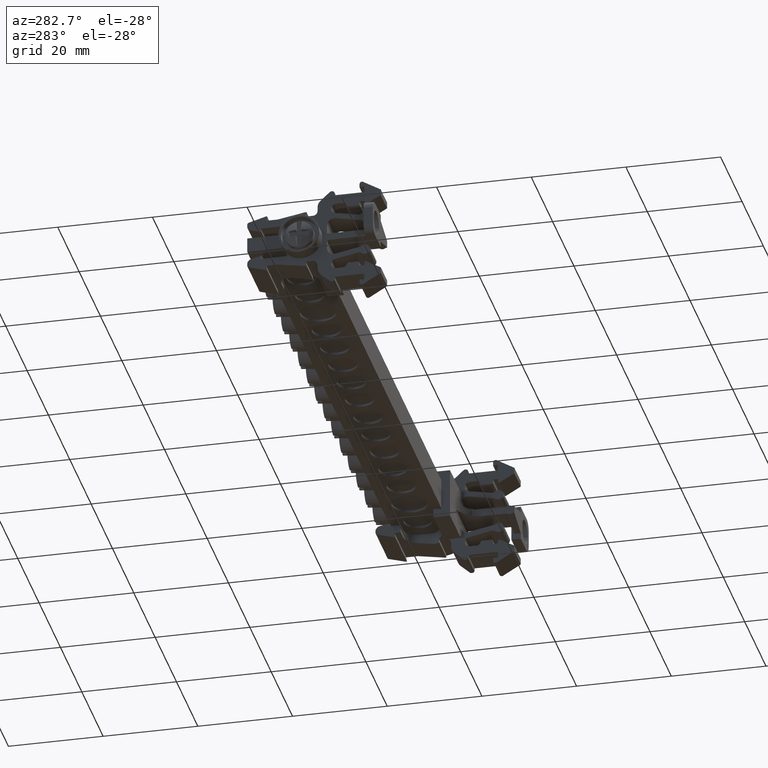
[diagram: clean part render]
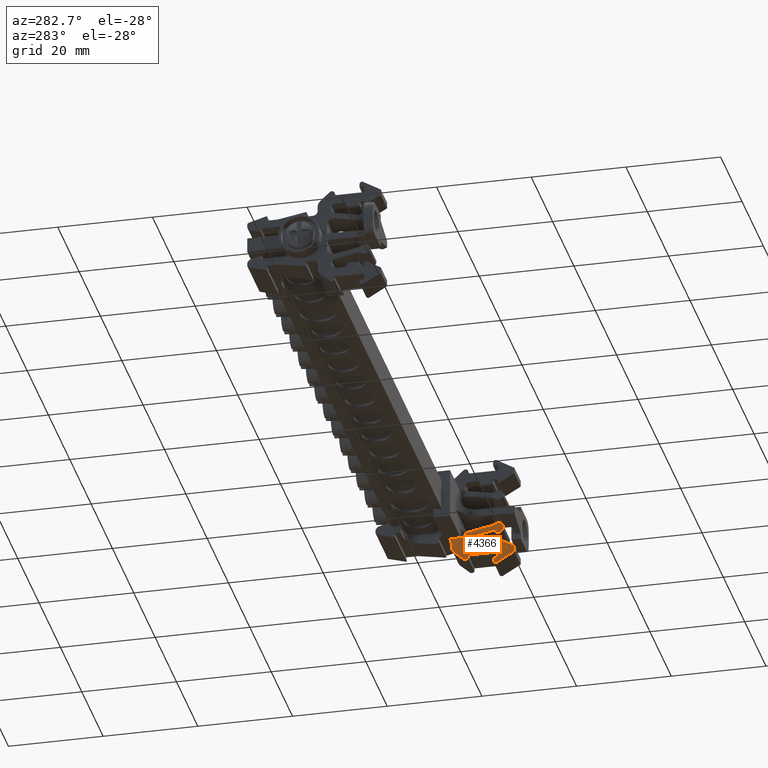
[diagram: same view with one face highlighted and labeled with its STEP entity id]
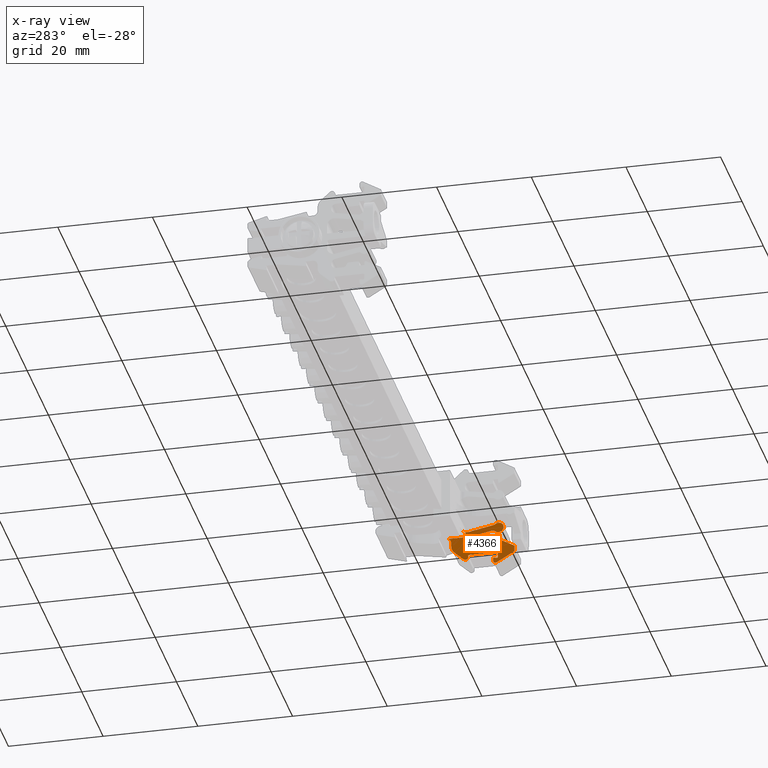
[diagram: x-ray of the same camera — body ghosted, the highlighted face saturated]
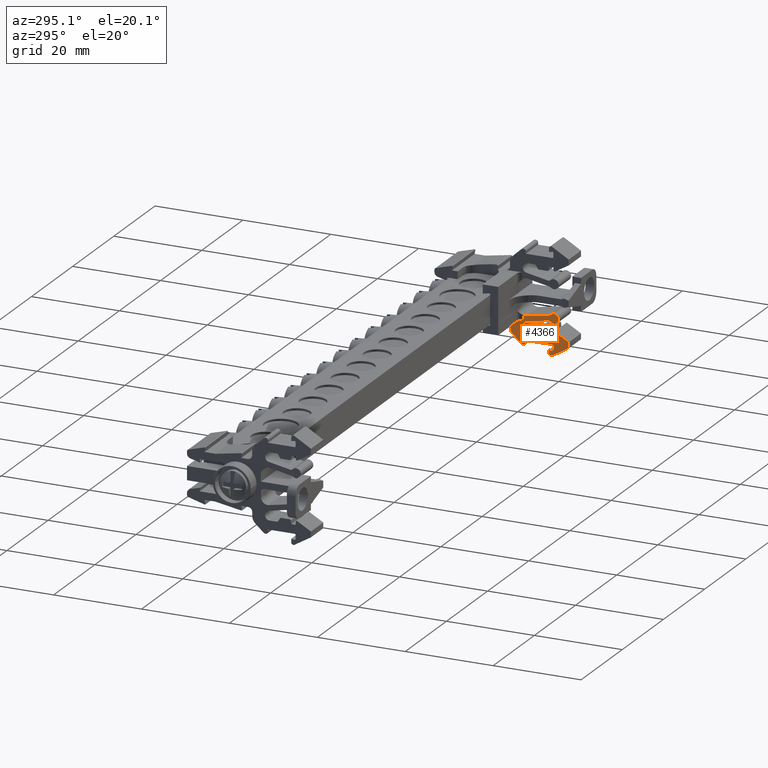
[diagram: same view with one face highlighted and labeled with its STEP entity id]
A machine part, auxiliary view. The second image highlights one B-rep face of the part: STEP entity #4366.
The next image is the same camera in x-ray: the body ghosted, the highlighted face saturated — about 0% of this face is hidden behind the body in this view.
A second angle (auxiliary view) of the same face is appended — the face is thin or edge-on in the first view.
In plain terms, the highlighted planar face has unit normal (-1, 0, -0).
Its self-contained STEP definition (entity closure, byte-faithful):
#8 = EDGE_CURVE ( 'NONE', #11749, #8898, #16404, .T. ) ;
#60 = EDGE_CURVE ( 'NONE', #8937, #8899, #9125, .T. ) ;
#65 = EDGE_CURVE ( 'NONE', #8894, #8901, #9199, .T. ) ;
#66 = EDGE_CURVE ( 'NONE', #8936, #8969, #9195, .T. ) ;
#71 = EDGE_CURVE ( 'NONE', #8930, #8888, #9177, .T. ) ;
#73 = EDGE_CURVE ( 'NONE', #21572, #8934, #3832, .T. ) ;
#95 = EDGE_CURVE ( 'NONE', #8825, #8902, #9289, .T. ) ;
#113 = EDGE_CURVE ( 'NONE', #8911, #8882, #9310, .T. ) ;
#118 = EDGE_CURVE ( 'NONE', #8846, #8916, #9339, .T. ) ;
#145 = EDGE_CURVE ( 'NONE', #11749, #11752, #3887, .T. ) ;
#787 = AXIS2_PLACEMENT_3D ( 'NONE', #14609, #14583, #14579 ) ;
#803 = CIRCLE ( 'NONE', #787, 1.100000000040436600 ) ;
#978 = VECTOR ( 'NONE', #14646, 1000.000000000000100 ) ;
#1018 = VECTOR ( 'NONE', #11679, 1000.000000000000000 ) ;
#1038 = VECTOR ( 'NONE', #8323, 1000.000000000000000 ) ;
#1043 = VECTOR ( 'NONE', #11122, 1000.000000000000200 ) ;
#1045 = VECTOR ( 'NONE', #11092, 1000.000000000000000 ) ;
#1177 = VECTOR ( 'NONE', #24895, 1000.000000000000100 ) ;
#1247 = AXIS2_PLACEMENT_3D ( 'NONE', #17638, #17669, #17639 ) ;
#1787 = DIRECTION ( 'NONE',  ( 1.000000000000000000, 1.101172293446148100E-014, 2.403906012228000300E-015 ) ) ;
#1799 = LINE ( 'NONE', #1814, #25475 ) ;
#1800 = DIRECTION ( 'NONE',  ( 0.0000000000000000000, 0.0000000000000000000, 1.000000000000000000 ) ) ;
#1806 = CARTESIAN_POINT ( 'NONE',  ( -32.33039649368615200, -51.85167342166836600, 89.21944197968717600 ) ) ;
#1814 = CARTESIAN_POINT ( 'NONE',  ( -32.33039649368605200, -58.64466689906337400, 68.30975947004758100 ) ) ;
#1823 = DIRECTION ( 'NONE',  ( 0.0000000000000000000, -1.000000000000000000, 4.625929039514235100E-014 ) ) ;
#2379 = LINE ( 'NONE', #2393, #16938 ) ;
#2382 = DIRECTION ( 'NONE',  ( -0.0000000000000000000, -1.000000000000000000, -1.383348239789810300E-013 ) ) ;
#2393 = CARTESIAN_POINT ( 'NONE',  ( -32.33039649368585300, -48.32358989761902300, 90.63749771212378900 ) ) ;
#2408 = CARTESIAN_POINT ( 'NONE',  ( -32.33039649368620200, -49.67006088807230000, 90.73144221563995900 ) ) ;
#2416 = DIRECTION ( 'NONE',  ( 2.352285033423025200E-015, 1.387778780781406000E-013, -1.000000000000000000 ) ) ;
#2425 = LINE ( 'NONE', #2408, #16928 ) ;
#3455 = EDGE_CURVE ( 'NONE', #8668, #8671, #4065, .T. ) ;
#3483 = EDGE_CURVE ( 'NONE', #8637, #8664, #4013, .T. ) ;
#3515 = EDGE_CURVE ( 'NONE', #8666, #8604, #4127, .T. ) ;
#3534 = EDGE_CURVE ( 'NONE', #8652, #8706, #4848, .T. ) ;
#3556 = EDGE_CURVE ( 'NONE', #8720, #8704, #4107, .T. ) ;
#3596 = EDGE_CURVE ( 'NONE', #8704, #8676, #4973, .T. ) ;
#3693 = EDGE_CURVE ( 'NONE', #8855, #8664, #5123, .T. ) ;
#3706 = EDGE_CURVE ( 'NONE', #8859, #8750, #4025, .T. ) ;
#3708 = EDGE_CURVE ( 'NONE', #8869, #8720, #5172, .T. ) ;
#3711 = EDGE_CURVE ( 'NONE', #8671, #8828, #5179, .T. ) ;
#3735 = VECTOR ( 'NONE', #5139, 1000.000000000000100 ) ;
#3744 = VECTOR ( 'NONE', #5186, 1000.000000000000000 ) ;
#3783 = VECTOR ( 'NONE', #9160, 1000.000000000000100 ) ;
#3829 = VECTOR ( 'NONE', #9193, 1000.000000000000000 ) ;
#3830 = VECTOR ( 'NONE', #9175, 1000.000000000000000 ) ;
#3832 = CIRCLE ( 'NONE', #3836, 1.100000000040436600 ) ;
#3833 = VECTOR ( 'NONE', #9194, 1000.000000000000200 ) ;
#3836 = AXIS2_PLACEMENT_3D ( 'NONE', #9207, #9209, #9188 ) ;
#3857 = VECTOR ( 'NONE', #9290, 1000.000000000000000 ) ;
#3877 = VECTOR ( 'NONE', #9383, 1000.000000000000100 ) ;
#3887 = CIRCLE ( 'NONE', #3888, 1.511999999999999600 ) ;
#3888 = AXIS2_PLACEMENT_3D ( 'NONE', #9381, #5264, #5254 ) ;
#3909 = VECTOR ( 'NONE', #9317, 1000.000000000000000 ) ;
#4013 = CIRCLE ( 'NONE', #4022, 1.000000000036318900 ) ;
#4022 = AXIS2_PLACEMENT_3D ( 'NONE', #4818, #4831, #4803 ) ;
#4025 = CIRCLE ( 'NONE', #4055, 0.5000000000187145900 ) ;
#4055 = AXIS2_PLACEMENT_3D ( 'NONE', #5183, #5148, #5181 ) ;
#4065 = CIRCLE ( 'NONE', #4071, 1.000000000036881200 ) ;
#4071 = AXIS2_PLACEMENT_3D ( 'NONE', #4787, #4762, #4791 ) ;
#4078 = VECTOR ( 'NONE', #4995, 1000.000000000000100 ) ;
#4082 = VECTOR ( 'NONE', #4883, 1000.000000000000000 ) ;
#4100 = AXIS2_PLACEMENT_3D ( 'NONE', #4953, #4925, #4927 ) ;
#4104 = AXIS2_PLACEMENT_3D ( 'NONE', #4841, #4857, #4842 ) ;
#4107 = CIRCLE ( 'NONE', #4100, 0.2000000000076732100 ) ;
#4127 = CIRCLE ( 'NONE', #4104, 0.5000000000182358600 ) ;
#4164 = VECTOR ( 'NONE', #5152, 1000.000000000000000 ) ;
#4300 = EDGE_CURVE ( 'NONE', #8637, #8604, #24898, .T. ) ;
#4366 = ADVANCED_FACE ( 'NONE', ( #17665 ), #17667, .T. ) ;
#4762 = DIRECTION ( 'NONE',  ( 1.000000000000000000, 1.101172293446148100E-014, 2.403906012228000300E-015 ) ) ;
#4787 = CARTESIAN_POINT ( 'NONE',  ( -32.33039649368620900, -44.29758946941841900, 89.76944206850869500 ) ) ;
#4791 = DIRECTION ( 'NONE',  ( 1.387778780730262800E-014, -1.000000000000000000, 0.0000000000000000000 ) ) ;
#4803 = DIRECTION ( 'NONE',  ( 1.387778780731043000E-014, -1.000000000000000000, 0.0000000000000000000 ) ) ;
#4818 = CARTESIAN_POINT ( 'NONE',  ( -32.33039649368615200, -49.21707803139546700, 89.51944179387656700 ) ) ;
#4831 = DIRECTION ( 'NONE',  ( 1.000000000000000000, 1.101172293446148100E-014, 2.403906012228000300E-015 ) ) ;
#4841 = CARTESIAN_POINT ( 'NONE',  ( -32.33039649368615900, -50.81244311099787600, 89.01944198712675400 ) ) ;
#4842 = DIRECTION ( 'NONE',  ( 1.387778780730830900E-014, -1.000000000000000000, 2.775557561461661900E-014 ) ) ;
#4848 = LINE ( 'NONE', #4908, #4082 ) ;
#4857 = DIRECTION ( 'NONE',  ( 1.000000000000000000, 1.101172293446148100E-014, 2.403906012228000300E-015 ) ) ;
#4883 = DIRECTION ( 'NONE',  ( -4.009822214888755600E-044, 1.000000000000000000, 1.668044505272630100E-029 ) ) ;
#4908 = CARTESIAN_POINT ( 'NONE',  ( -32.33039649368610200, -45.59583688173570000, 88.51944177150618000 ) ) ;
#4925 = DIRECTION ( 'NONE',  ( 1.000000000000000000, 1.101172293446148100E-014, 2.403906012228000300E-015 ) ) ;
#4927 = DIRECTION ( 'NONE',  ( 0.0000000000000000000, -1.000000000000000000, 0.0000000000000000000 ) ) ;
#4953 = CARTESIAN_POINT ( 'NONE',  ( -32.33039649368610200, -54.96053997683157600, 85.36238036855645800 ) ) ;
#4965 = CARTESIAN_POINT ( 'NONE',  ( -32.33039649368610200, -48.75965838226601800, 86.25267806405557300 ) ) ;
#4973 = LINE ( 'NONE', #4965, #4078 ) ;
#4995 = DIRECTION ( 'NONE',  ( 0.0000000000000000000, 0.9848077451303113300, 0.1736482223673815100 ) ) ;
#5102 = CARTESIAN_POINT ( 'NONE',  ( -32.33039649368620900, -48.21710104535817700, 68.30976215696898600 ) ) ;
#5123 = LINE ( 'NONE', #5102, #3735 ) ;
#5139 = DIRECTION ( 'NONE',  ( 0.0000000000000000000, -1.085070571871616700E-006, -0.9999999999994112500 ) ) ;
#5148 = DIRECTION ( 'NONE',  ( 1.000000000000000000, 1.101172293446148100E-014, 2.403906012228000300E-015 ) ) ;
#5152 = DIRECTION ( 'NONE',  ( 0.0000000000000000000, -0.0000000000000000000, -1.000000000000000000 ) ) ;
#5168 = CARTESIAN_POINT ( 'NONE',  ( -32.33039649368610200, -55.16053997683917500, 68.30975947004758100 ) ) ;
#5172 = LINE ( 'NONE', #5168, #4164 ) ;
#5179 = LINE ( 'NONE', #5180, #3744 ) ;
#5180 = CARTESIAN_POINT ( 'NONE',  ( -32.33039649368620900, -45.29760005549117400, 68.30975925139938500 ) ) ;
#5181 = DIRECTION ( 'NONE',  ( 1.387778780729502300E-014, -1.000000000000000000, 0.0000000000000000000 ) ) ;
#5183 = CARTESIAN_POINT ( 'NONE',  ( -32.33039649368615900, -48.39155226866337500, 86.00344225067357200 ) ) ;
#5186 = DIRECTION ( 'NONE',  ( 0.0000000000000000000, -4.932988041073461900E-007, -0.9999999999998783200 ) ) ;
#5254 = DIRECTION ( 'NONE',  ( -9.178431089824379200E-015, 1.000000000000000000, 0.0000000000000000000 ) ) ;
#5264 = DIRECTION ( 'NONE',  ( -1.000000000000000000, -1.100161628464490100E-014, -2.352285033424550400E-015 ) ) ;
#7973 = CARTESIAN_POINT ( 'NONE',  ( -32.33039649368602400, -48.32358989761902300, 90.73144221564037100 ) ) ;
#8305 = CARTESIAN_POINT ( 'NONE',  ( -32.33039649368615200, -45.74087650197830600, 85.50344835873269700 ) ) ;
#8315 = LINE ( 'NONE', #8305, #1038 ) ;
#8323 = DIRECTION ( 'NONE',  ( 0.0000000000000000000, 0.9999999999973450100, 2.304348000120185200E-006 ) ) ;
#8604 = VERTEX_POINT ( 'NONE', #23156 ) ;
#8637 = VERTEX_POINT ( 'NONE', #23183 ) ;
#8652 = VERTEX_POINT ( 'NONE', #23181 ) ;
#8664 = VERTEX_POINT ( 'NONE', #23194 ) ;
#8666 = VERTEX_POINT ( 'NONE', #23228 ) ;
#8668 = VERTEX_POINT ( 'NONE', #23198 ) ;
#8671 = VERTEX_POINT ( 'NONE', #23201 ) ;
#8676 = VERTEX_POINT ( 'NONE', #23254 ) ;
#8704 = VERTEX_POINT ( 'NONE', #23248 ) ;
#8706 = VERTEX_POINT ( 'NONE', #23276 ) ;
#8720 = VERTEX_POINT ( 'NONE', #23303 ) ;
#8750 = VERTEX_POINT ( 'NONE', #23335 ) ;
#8760 = VERTEX_POINT ( 'NONE', #23315 ) ;
#8761 = VERTEX_POINT ( 'NONE', #23347 ) ;
#8765 = VERTEX_POINT ( 'NONE', #23329 ) ;
#8803 = VERTEX_POINT ( 'NONE', #23388 ) ;
#8825 = VERTEX_POINT ( 'NONE', #23408 ) ;
#8828 = VERTEX_POINT ( 'NONE', #23434 ) ;
#8840 = VERTEX_POINT ( 'NONE', #23409 ) ;
#8846 = VERTEX_POINT ( 'NONE', #23428 ) ;
#8855 = VERTEX_POINT ( 'NONE', #23423 ) ;
#8859 = VERTEX_POINT ( 'NONE', #23420 ) ;
#8869 = VERTEX_POINT ( 'NONE', #13447 ) ;
#8882 = VERTEX_POINT ( 'NONE', #13446 ) ;
#8888 = VERTEX_POINT ( 'NONE', #13202 ) ;
#8894 = VERTEX_POINT ( 'NONE', #13215 ) ;
#8898 = VERTEX_POINT ( 'NONE', #13240 ) ;
#8899 = VERTEX_POINT ( 'NONE', #13191 ) ;
#8901 = VERTEX_POINT ( 'NONE', #13211 ) ;
#8902 = VERTEX_POINT ( 'NONE', #13207 ) ;
#8911 = VERTEX_POINT ( 'NONE', #13194 ) ;
#8916 = VERTEX_POINT ( 'NONE', #13216 ) ;
#8930 = VERTEX_POINT ( 'NONE', #13236 ) ;
#8934 = VERTEX_POINT ( 'NONE', #13199 ) ;
#8936 = VERTEX_POINT ( 'NONE', #13200 ) ;
#8937 = VERTEX_POINT ( 'NONE', #13244 ) ;
#8944 = CARTESIAN_POINT ( 'NONE',  ( -32.33039649368513600, -48.21228471264866800, 91.97966881963947100 ) ) ;
#8945 = CARTESIAN_POINT ( 'NONE',  ( -32.33039649368619500, -48.29758989826876800, 91.94950888202967600 ) ) ;
#8955 = CARTESIAN_POINT ( 'NONE',  ( -32.33039649368513600, -47.77428544944322700, 92.26315205274072200 ) ) ;
#8958 = CARTESIAN_POINT ( 'NONE',  ( -32.33039649368513600, -47.71070303796535900, 92.32638582886036700 ) ) ;
#8959 = CARTESIAN_POINT ( 'NONE',  ( -32.33039649368513600, -48.13205051154687200, 92.01662373321116200 ) ) ;
#8969 = VERTEX_POINT ( 'NONE', #13246 ) ;
#8977 = CARTESIAN_POINT ( 'NONE',  ( -32.33039649368600300, -47.65442162130911200, 92.39263196289306300 ) ) ;
#8978 = CARTESIAN_POINT ( 'NONE',  ( -32.33039649368513600, -47.90908806977418500, 92.15235085621347400 ) ) ;
#8982 = CARTESIAN_POINT ( 'NONE',  ( -32.33039649368513600, -47.98030630622308500, 92.10290320948057300 ) ) ;
#9125 = LINE ( 'NONE', #9152, #3783 ) ;
#9152 = CARTESIAN_POINT ( 'NONE',  ( -32.33039649368615900, -58.64466689906340200, 87.57637972797417100 ) ) ;
#9160 = DIRECTION ( 'NONE',  ( -1.924032333060058300E-015, 0.8660254095965316300, 0.4999999899331594700 ) ) ;
#9173 = CARTESIAN_POINT ( 'NONE',  ( -32.33039649368616600, -49.04342985372241500, 90.66541880934157400 ) ) ;
#9174 = CARTESIAN_POINT ( 'NONE',  ( -32.33039649368616600, -50.22354764343320000, 89.51944199458728200 ) ) ;
#9175 = DIRECTION ( 'NONE',  ( 3.247763491985500000E-028, 1.000000000000000000, 7.639665454295208800E-043 ) ) ;
#9177 = LINE ( 'NONE', #9173, #3833 ) ;
#9188 = DIRECTION ( 'NONE',  ( 1.261617073391300200E-014, -1.000000000000000000, 0.0000000000000000000 ) ) ;
#9193 = DIRECTION ( 'NONE',  ( 0.0000000000000000000, 0.9818954940040612900, -0.1894234379756644900 ) ) ;
#9194 = DIRECTION ( 'NONE',  ( 0.0000000000000000000, -0.9817353061411263600, 0.1902519084687164500 ) ) ;
#9195 = LINE ( 'NONE', #9174, #3830 ) ;
#9196 = CARTESIAN_POINT ( 'NONE',  ( -32.33039649368617300, -54.28811458948409600, 92.89547185873058800 ) ) ;
#9199 = LINE ( 'NONE', #9196, #3829 ) ;
#9207 = CARTESIAN_POINT ( 'NONE',  ( -32.33039649368609500, -55.28401611767337400, 92.20986672067788000 ) ) ;
#9209 = DIRECTION ( 'NONE',  ( -1.000000000000000000, -1.101172293446148100E-014, -2.403906012228000300E-015 ) ) ;
#9289 = LINE ( 'NONE', #9292, #3857 ) ;
#9290 = DIRECTION ( 'NONE',  ( 2.616514368037627200E-015, -0.7377123847283566500, -0.6751151290101571300 ) ) ;
#9292 = CARTESIAN_POINT ( 'NONE',  ( -32.33039649368615900, -45.94735974039370800, 87.42496507486147600 ) ) ;
#9302 = CARTESIAN_POINT ( 'NONE',  ( -32.33039649368615900, -50.22354764343320000, 86.51144221565168400 ) ) ;
#9310 = LINE ( 'NONE', #9302, #3909 ) ;
#9317 = DIRECTION ( 'NONE',  ( -3.247763491985500000E-028, -1.000000000000000000, -7.639665454295208800E-043 ) ) ;
#9331 = CARTESIAN_POINT ( 'NONE',  ( -32.33039649368615200, -54.98107747304600700, 84.13570119003078700 ) ) ;
#9339 = LINE ( 'NONE', #9331, #3877 ) ;
#9381 = CARTESIAN_POINT ( 'NONE',  ( -32.33039649368574000, -48.82758989761935500, 93.34647691646735300 ) ) ;
#9383 = DIRECTION ( 'NONE',  ( -1.631586245007779400E-015, -0.8614430768973244700, 0.5078541377853195100 ) ) ;
#10027 = EDGE_CURVE ( 'NONE', #21566, #21572, #803, .T. ) ;
#10174 = DIRECTION ( 'NONE',  ( 1.040834085547744000E-014, -1.000000000000000000, 0.0000000000000000000 ) ) ;
#10177 = DIRECTION ( 'NONE',  ( 1.387778780730638500E-014, -1.000000000000000000, 0.0000000000000000000 ) ) ;
#10181 = DIRECTION ( 'NONE',  ( 0.0000000000000000000, -1.000000000000000000, 0.0000000000000000000 ) ) ;
#10185 = DIRECTION ( 'NONE',  ( 1.000000000000000000, 1.101172293446148100E-014, 2.403906012228000300E-015 ) ) ;
#10191 = CARTESIAN_POINT ( 'NONE',  ( -32.33039649368619500, -47.29758989823157800, 88.90038993609987000 ) ) ;
#10197 = DIRECTION ( 'NONE',  ( 1.000000000000000000, 1.101172293446148100E-014, 2.403906012228000300E-015 ) ) ;
#10206 = CARTESIAN_POINT ( 'NONE',  ( -32.33039649368610900, -54.20129050064777200, 93.38787573525476700 ) ) ;
#10207 = CARTESIAN_POINT ( 'NONE',  ( -32.33039649368610200, -54.96053997683196700, 86.31144196469065800 ) ) ;
#10208 = DIRECTION ( 'NONE',  ( 1.000000000000000000, 1.101172293446148100E-014, 2.403906012228000300E-015 ) ) ;
#10226 = DIRECTION ( 'NONE',  ( 1.387779071915610800E-014, -1.000000000000000000, 0.0000000000000000000 ) ) ;
#10228 = DIRECTION ( 'NONE',  ( 1.000000000000000000, 1.101172293446148100E-014, 2.403906012228000300E-015 ) ) ;
#10238 = CARTESIAN_POINT ( 'NONE',  ( -32.33039649368615200, -48.24130138547566600, 86.00344249199267200 ) ) ;
#10306 = DIRECTION ( 'NONE',  ( 0.0000000000000000000, -1.000000000000000000, 0.0000000000000000000 ) ) ;
#10342 = CARTESIAN_POINT ( 'NONE',  ( -32.33039649368610200, -53.79815189305197300, 89.21944199457568900 ) ) ;
#10343 = DIRECTION ( 'NONE',  ( 1.000000000000000000, 1.101172293446148100E-014, 2.403906012228000300E-015 ) ) ;
#10349 = CARTESIAN_POINT ( 'NONE',  ( -32.33039649368619500, -49.21707785651587100, 89.68061102545698300 ) ) ;
#10351 = DIRECTION ( 'NONE',  ( 1.000000000000000000, 1.101172293446148100E-014, 2.403906012228000300E-015 ) ) ;
#10365 = DIRECTION ( 'NONE',  ( 1.387778780730128100E-014, -1.000000000000000000, 0.0000000000000000000 ) ) ;
#10392 = DIRECTION ( 'NONE',  ( 1.000000000000000000, 1.101172293446148100E-014, 2.403906012228000300E-015 ) ) ;
#10419 = DIRECTION ( 'NONE',  ( 0.0000000000000000000, -1.000000000000000000, -6.938893903650640300E-014 ) ) ;
#10426 = CARTESIAN_POINT ( 'NONE',  ( -32.33039649368610200, -55.42140419284157100, 89.20639116298858100 ) ) ;
#10435 = LINE ( 'NONE', #10468, #25355 ) ;
#10437 = DIRECTION ( 'NONE',  ( 1.387778780730387900E-014, -1.000000000000000000, -2.775557561460775800E-014 ) ) ;
#10442 = DIRECTION ( 'NONE',  ( 1.000000000000000000, 1.101172293446148100E-014, 2.403906012228000300E-015 ) ) ;
#10448 = DIRECTION ( 'NONE',  ( 1.387778780730426700E-014, -1.000000000000000000, 0.0000000000000000000 ) ) ;
#10452 = CARTESIAN_POINT ( 'NONE',  ( -32.33039649368610200, -54.09815130793067800, 91.13575096657957900 ) ) ;
#10462 = DIRECTION ( 'NONE',  ( 1.000000000000000000, 1.101172293446148100E-014, 2.403906012228000300E-015 ) ) ;
#10465 = CARTESIAN_POINT ( 'NONE',  ( -32.33039649368610900, -54.66053991142097600, 84.51944025711407000 ) ) ;
#10468 = CARTESIAN_POINT ( 'NONE',  ( -32.33039649368615200, -48.89155226868156500, 68.30975947004758100 ) ) ;
#10469 = DIRECTION ( 'NONE',  ( 0.0000000000000000000, -0.0000000000000000000, -1.000000000000000000 ) ) ;
#10664 = DIRECTION ( 'NONE',  ( 9.251858538202545600E-015, -1.000000000000000000, 9.251858538202545600E-015 ) ) ;
#10665 = CARTESIAN_POINT ( 'NONE',  ( -32.33039649368615900, -48.79759029975407000, 93.36372230251475900 ) ) ;
#10674 = DIRECTION ( 'NONE',  ( 1.000000000000000000, 1.101172293446148100E-014, 2.403906012228000300E-015 ) ) ;
#10939 = EDGE_CURVE ( 'NONE', #8652, #8761, #14644, .T. ) ;
#10941 = EDGE_CURVE ( 'NONE', #8666, #8765, #11677, .T. ) ;
#10984 = EDGE_CURVE ( 'NONE', #8676, #8840, #11089, .T. ) ;
#10985 = EDGE_CURVE ( 'NONE', #8760, #8706, #11133, .T. ) ;
#11089 = LINE ( 'NONE', #11090, #1045 ) ;
#11090 = CARTESIAN_POINT ( 'NONE',  ( -32.33039649368610200, -54.16054318366586500, 68.30976119901298200 ) ) ;
#11092 = DIRECTION ( 'NONE',  ( 0.0000000000000000000, -2.018709456975884700E-007, -0.9999999999999796800 ) ) ;
#11122 = DIRECTION ( 'NONE',  ( 0.0000000000000000000, -0.08715550509949666900, -0.9961947188832369600 ) ) ;
#11125 = CARTESIAN_POINT ( 'NONE',  ( -32.33039649368610200, -55.85016407138646600, 69.20689438627309200 ) ) ;
#11133 = LINE ( 'NONE', #11125, #1043 ) ;
#11312 = CARTESIAN_POINT ( 'NONE',  ( -32.33039649368600300, -47.65442162130911200, 92.39263196289306300 ) ) ;
#11326 = CARTESIAN_POINT ( 'NONE',  ( -32.33039649368579700, -48.32358989761918600, 91.92094964559532900 ) ) ;
#11677 = LINE ( 'NONE', #11703, #1018 ) ;
#11679 = DIRECTION ( 'NONE',  ( 0.0000000000000000000, -0.4999997977809528300, 0.8660255205356285300 ) ) ;
#11703 = CARTESIAN_POINT ( 'NONE',  ( -32.33039649368615200, -40.97375220469390200, 70.97831986353114100 ) ) ;
#11749 = VERTEX_POINT ( 'NONE', #11312 ) ;
#11752 = VERTEX_POINT ( 'NONE', #11326 ) ;
#12015 = VERTEX_POINT ( 'NONE', #7973 ) ;
#12579 = EDGE_CURVE ( 'NONE', #8750, #8803, #8315, .T. ) ;
#12824 = EDGE_CURVE ( 'NONE', #8901, #8898, #25286, .T. ) ;
#12832 = EDGE_CURVE ( 'NONE', #8825, #8828, #25258, .T. ) ;
#12836 = EDGE_CURVE ( 'NONE', #8934, #8894, #25276, .T. ) ;
#12838 = EDGE_CURVE ( 'NONE', #8882, #8869, #25239, .T. ) ;
#12842 = EDGE_CURVE ( 'NONE', #8803, #8902, #25247, .T. ) ;
#12883 = EDGE_CURVE ( 'NONE', #8936, #8760, #25311, .T. ) ;
#12889 = EDGE_CURVE ( 'NONE', #8855, #8930, #25342, .T. ) ;
#12908 = EDGE_CURVE ( 'NONE', #8761, #8899, #25375, .T. ) ;
#12918 = EDGE_CURVE ( 'NONE', #8888, #21566, #25408, .T. ) ;
#12922 = EDGE_CURVE ( 'NONE', #8846, #8840, #25401, .T. ) ;
#12924 = EDGE_CURVE ( 'NONE', #8911, #8859, #10435, .T. ) ;
#12983 = EDGE_CURVE ( 'NONE', #8765, #8969, #25503, .T. ) ;
#12992 = EDGE_CURVE ( 'NONE', #8916, #8937, #1799, .T. ) ;
#13191 = CARTESIAN_POINT ( 'NONE',  ( -32.33039649368613100, -55.52140419083187300, 89.37959624491436700 ) ) ;
#13194 = CARTESIAN_POINT ( 'NONE',  ( -32.33039649368615900, -48.89155226868152900, 86.51144221565169800 ) ) ;
#13199 = CARTESIAN_POINT ( 'NONE',  ( -32.33039649368610200, -54.53964225596826100, 93.01974791819955600 ) ) ;
#13200 = CARTESIAN_POINT ( 'NONE',  ( -32.33039649368613100, -53.79815184249272900, 89.51944199458728200 ) ) ;
#13202 = CARTESIAN_POINT ( 'NONE',  ( -32.33039649368613100, -54.01132721909383600, 91.62815484310377200 ) ) ;
#13207 = CARTESIAN_POINT ( 'NONE',  ( -32.33039649368615200, -47.90374403084624100, 85.63458624974708800 ) ) ;
#13211 = CARTESIAN_POINT ( 'NONE',  ( -32.33039649368615900, -49.05806214138651500, 91.88651059802479900 ) ) ;
#13215 = CARTESIAN_POINT ( 'NONE',  ( -32.33039649368610900, -54.28811458948374000, 92.89547185873054500 ) ) ;
#13216 = CARTESIAN_POINT ( 'NONE',  ( -32.33039649368612300, -58.64466689906338800, 86.29552938883729500 ) ) ;
#13236 = CARTESIAN_POINT ( 'NONE',  ( -32.33039649368620200, -49.04342985372392100, 90.66541880934190100 ) ) ;
#13240 = CARTESIAN_POINT ( 'NONE',  ( -32.33039649368619500, -48.29758989826876800, 91.94950888202967600 ) ) ;
#13244 = CARTESIAN_POINT ( 'NONE',  ( -32.33039649368612300, -58.64466689906338800, 87.57637972797415700 ) ) ;
#13246 = CARTESIAN_POINT ( 'NONE',  ( -32.33039649368615200, -51.85167335582563200, 89.51944199458728200 ) ) ;
#13446 = CARTESIAN_POINT ( 'NONE',  ( -32.33039649368613100, -54.96065835821968900, 86.51144207265720400 ) ) ;
#13447 = CARTESIAN_POINT ( 'NONE',  ( -32.33039649368610200, -55.16053997683917500, 86.31144210965253200 ) ) ;
#13505 = CARTESIAN_POINT ( 'NONE',  ( -32.33039649368610200, -54.46873406097524400, 91.47141213973533500 ) ) ;
#13506 = CARTESIAN_POINT ( 'NONE',  ( -32.33039649368608100, -56.38401611771381300, 92.20986672067788000 ) ) ;
#14579 = DIRECTION ( 'NONE',  ( 1.261617073391300200E-014, -1.000000000000000000, 0.0000000000000000000 ) ) ;
#14583 = DIRECTION ( 'NONE',  ( -1.000000000000000000, -1.101172293446148100E-014, -2.403906012228000300E-015 ) ) ;
#14609 = CARTESIAN_POINT ( 'NONE',  ( -32.33039649368609500, -55.28401611767337400, 92.20986672067788000 ) ) ;
#14643 = CARTESIAN_POINT ( 'NONE',  ( -32.33039649368610200, -53.33319914363367100, 67.63282837851818400 ) ) ;
#14644 = LINE ( 'NONE', #14643, #978 ) ;
#14646 = DIRECTION ( 'NONE',  ( 0.0000000000000000000, -0.08715569266313325000, 0.9961947024735724500 ) ) ;
#16388 = EDGE_CURVE ( 'NONE', #11752, #12015, #2379, .T. ) ;
#16397 = EDGE_CURVE ( 'NONE', #8668, #12015, #2425, .T. ) ;
#16404 = B_SPLINE_CURVE_WITH_KNOTS ( 'NONE', 3,
 ( #8977, #8958, #8955, #8978, #8982, #8959, #8944, #8945 ),
 .UNSPECIFIED., .F., .F.,
 ( 4, 2, 2, 4 ),
 ( 0.0000000000000000000, 0.0002795866936905075000, 0.0005320780052811964400, 0.0007845693168718855400 ),
 .UNSPECIFIED. ) ;
#16928 = VECTOR ( 'NONE', #2382, 1000.000000000000000 ) ;
#16938 = VECTOR ( 'NONE', #2416, 1000.000000000000000 ) ;
#17638 = CARTESIAN_POINT ( 'NONE',  ( -32.33039649368620900, -50.22354764343320000, 108.0294437766905800 ) ) ;
#17639 = DIRECTION ( 'NONE',  ( -2.352285033423030300E-015, 0.0000000000000000000, 1.000000000000000000 ) ) ;
#17665 = FACE_OUTER_BOUND ( 'NONE', #22805, .T. ) ;
#17667 = PLANE ( 'NONE',  #1247 ) ;
#17669 = DIRECTION ( 'NONE',  ( -1.000000000000000000, 3.247763491985500000E-028, -2.352285033423030300E-015 ) ) ;
#19117 = ORIENTED_EDGE ( 'NONE', *, *, #10941, .F. ) ;
#19134 = ORIENTED_EDGE ( 'NONE', *, *, #3515, .T. ) ;
#19152 = ORIENTED_EDGE ( 'NONE', *, *, #4300, .F. ) ;
#19165 = ORIENTED_EDGE ( 'NONE', *, *, #10939, .F. ) ;
#19166 = ORIENTED_EDGE ( 'NONE', *, *, #12824, .T. ) ;
#19167 = ORIENTED_EDGE ( 'NONE', *, *, #12922, .F. ) ;
#19168 = ORIENTED_EDGE ( 'NONE', *, *, #12832, .F. ) ;
#19172 = ORIENTED_EDGE ( 'NONE', *, *, #12983, .F. ) ;
#19173 = ORIENTED_EDGE ( 'NONE', *, *, #16397, .F. ) ;
#19175 = ORIENTED_EDGE ( 'NONE', *, *, #3708, .T. ) ;
#19176 = ORIENTED_EDGE ( 'NONE', *, *, #12889, .T. ) ;
#19180 = ORIENTED_EDGE ( 'NONE', *, *, #3534, .T. ) ;
#19182 = ORIENTED_EDGE ( 'NONE', *, *, #10985, .F. ) ;
#19190 = ORIENTED_EDGE ( 'NONE', *, *, #3483, .T. ) ;
#19194 = ORIENTED_EDGE ( 'NONE', *, *, #12908, .F. ) ;
#19196 = ORIENTED_EDGE ( 'NONE', *, *, #3711, .T. ) ;
#19201 = ORIENTED_EDGE ( 'NONE', *, *, #12992, .T. ) ;
#19202 = ORIENTED_EDGE ( 'NONE', *, *, #3706, .F. ) ;
#19208 = ORIENTED_EDGE ( 'NONE', *, *, #95, .T. ) ;
#19210 = ORIENTED_EDGE ( 'NONE', *, *, #3556, .T. ) ;
#19214 = ORIENTED_EDGE ( 'NONE', *, *, #3693, .F. ) ;
#19215 = ORIENTED_EDGE ( 'NONE', *, *, #12918, .T. ) ;
#19217 = ORIENTED_EDGE ( 'NONE', *, *, #66, .T. ) ;
#19219 = ORIENTED_EDGE ( 'NONE', *, *, #145, .T. ) ;
#19220 = ORIENTED_EDGE ( 'NONE', *, *, #12836, .T. ) ;
#19224 = ORIENTED_EDGE ( 'NONE', *, *, #3455, .T. ) ;
#19227 = ORIENTED_EDGE ( 'NONE', *, *, #71, .T. ) ;
#19229 = ORIENTED_EDGE ( 'NONE', *, *, #12579, .F. ) ;
#19232 = ORIENTED_EDGE ( 'NONE', *, *, #118, .T. ) ;
#19234 = ORIENTED_EDGE ( 'NONE', *, *, #12842, .F. ) ;
#19238 = ORIENTED_EDGE ( 'NONE', *, *, #12838, .T. ) ;
#19239 = ORIENTED_EDGE ( 'NONE', *, *, #8, .F. ) ;
#19246 = ORIENTED_EDGE ( 'NONE', *, *, #10984, .T. ) ;
#19248 = ORIENTED_EDGE ( 'NONE', *, *, #73, .T. ) ;
#19250 = ORIENTED_EDGE ( 'NONE', *, *, #113, .T. ) ;
#19252 = ORIENTED_EDGE ( 'NONE', *, *, #3596, .T. ) ;
#19263 = ORIENTED_EDGE ( 'NONE', *, *, #60, .T. ) ;
#19265 = ORIENTED_EDGE ( 'NONE', *, *, #12924, .F. ) ;
#19295 = ORIENTED_EDGE ( 'NONE', *, *, #65, .T. ) ;
#19301 = ORIENTED_EDGE ( 'NONE', *, *, #10027, .T. ) ;
#19307 = ORIENTED_EDGE ( 'NONE', *, *, #12883, .F. ) ;
#19309 = ORIENTED_EDGE ( 'NONE', *, *, #16388, .T. ) ;
#21566 = VERTEX_POINT ( 'NONE', #13505 ) ;
#21572 = VERTEX_POINT ( 'NONE', #13506 ) ;
#22805 = EDGE_LOOP ( 'NONE', ( #19117, #19134, #19152, #19190, #19214, #19176, #19227, #19215, #19301, #19248, #19220, #19295, #19166, #19239, #19219, #19309, #19173, #19224, #19196, #19168, #19208, #19234, #19229, #19202, #19265, #19250, #19238, #19175, #19210, #19252, #19246, #19167, #19232, #19201, #19263, #19194, #19165, #19180, #19182, #19307, #19217, #19172 ) ) ;
#23156 = CARTESIAN_POINT ( 'NONE',  ( -32.33039649368615900, -50.81244316652325200, 88.51944197905736200 ) ) ;
#23181 = CARTESIAN_POINT ( 'NONE',  ( -32.33039649368610200, -55.16053997683913900, 88.51944177150620900 ) ) ;
#23183 = CARTESIAN_POINT ( 'NONE',  ( -32.33039649368615200, -49.21707811100289100, 88.51944179384005900 ) ) ;
#23194 = CARTESIAN_POINT ( 'NONE',  ( -32.33039649368618700, -48.21707803136013800, 89.51944070880598800 ) ) ;
#23198 = CARTESIAN_POINT ( 'NONE',  ( -32.33039649368617300, -44.57063839725326900, 90.73144221564066900 ) ) ;
#23201 = CARTESIAN_POINT ( 'NONE',  ( -32.33039649368620200, -45.29758946945516800, 89.76944235792719000 ) ) ;
#23228 = CARTESIAN_POINT ( 'NONE',  ( -32.33039649368615200, -51.24545580239870900, 88.76944196891865600 ) ) ;
#23248 = CARTESIAN_POINT ( 'NONE',  ( -32.33039649368610200, -54.92581033235672500, 85.16541881952279900 ) ) ;
#23254 = CARTESIAN_POINT ( 'NONE',  ( -32.33039649368610900, -54.16053975375828600, 85.30035670588777900 ) ) ;
#23276 = CARTESIAN_POINT ( 'NONE',  ( -32.33039649368610200, -54.16053975375820800, 88.51944177150620900 ) ) ;
#23303 = CARTESIAN_POINT ( 'NONE',  ( -32.33039649368610200, -55.16053997683917500, 85.36238028545433600 ) ) ;
#23315 = CARTESIAN_POINT ( 'NONE',  ( -32.33039649368610200, -54.09701030872849300, 89.24558864610651200 ) ) ;
#23329 = CARTESIAN_POINT ( 'NONE',  ( -32.33039649368615200, -51.59186575260370900, 89.36944192647150900 ) ) ;
#23335 = CARTESIAN_POINT ( 'NONE',  ( -32.33039649368615900, -48.39155111648923900, 85.50344225065606500 ) ) ;
#23347 = CARTESIAN_POINT ( 'NONE',  ( -32.33039649368610200, -55.22216525566413000, 89.22382233952235700 ) ) ;
#23388 = CARTESIAN_POINT ( 'NONE',  ( -32.33039649368615200, -48.24130023330178600, 85.50344259688618800 ) ) ;
#23408 = CARTESIAN_POINT ( 'NONE',  ( -32.33039649368620900, -45.94735969027758700, 87.42496512072511900 ) ) ;
#23409 = CARTESIAN_POINT ( 'NONE',  ( -32.33039649368611600, -54.16053991140262300, 84.51944020664619500 ) ) ;
#23420 = CARTESIAN_POINT ( 'NONE',  ( -32.33039649368615200, -48.89155226868156500, 86.00344247954943500 ) ) ;
#23423 = CARTESIAN_POINT ( 'NONE',  ( -32.33039649368620900, -48.21707785647950600, 89.68061055848404800 ) ) ;
#23428 = CARTESIAN_POINT ( 'NONE',  ( -32.33039649368613100, -54.98107747304574400, 84.13570119003064500 ) ) ;
#23434 = CARTESIAN_POINT ( 'NONE',  ( -32.33039649368621600, -45.29758989815815800, 88.90038894950228600 ) ) ;
#24895 = DIRECTION ( 'NONE',  ( 0.0000000000000000000, -0.9999999999999937800, 1.110506526971359100E-007 ) ) ;
#24898 = LINE ( 'NONE', #24900, #1177 ) ;
#24900 = CARTESIAN_POINT ( 'NONE',  ( -32.33039649368615900, -45.74083463743730200, 88.51944140780077000 ) ) ;
#25234 = AXIS2_PLACEMENT_3D ( 'NONE', #10206, #10197, #10177 ) ;
#25239 = CIRCLE ( 'NONE', #25245, 0.2000000000074164700 ) ;
#25245 = AXIS2_PLACEMENT_3D ( 'NONE', #10207, #10185, #10181 ) ;
#25247 = CIRCLE ( 'NONE', #25277, 0.4999998951078846200 ) ;
#25250 = AXIS2_PLACEMENT_3D ( 'NONE', #10665, #10674, #10664 ) ;
#25258 = CIRCLE ( 'NONE', #25271, 2.000000000073672200 ) ;
#25271 = AXIS2_PLACEMENT_3D ( 'NONE', #10191, #10208, #10174 ) ;
#25276 = CIRCLE ( 'NONE', #25234, 0.5000000000183052500 ) ;
#25277 = AXIS2_PLACEMENT_3D ( 'NONE', #10238, #10228, #10226 ) ;
#25286 = CIRCLE ( 'NONE', #25250, 1.500000000055193200 ) ;
#25302 = AXIS2_PLACEMENT_3D ( 'NONE', #10342, #10343, #10306 ) ;
#25311 = CIRCLE ( 'NONE', #25302, 0.3000000000116104200 ) ;
#25334 = AXIS2_PLACEMENT_3D ( 'NONE', #10349, #10351, #10365 ) ;
#25342 = CIRCLE ( 'NONE', #25334, 1.000000000036978200 ) ;
#25355 = VECTOR ( 'NONE', #10469, 1000.000000000000000 ) ;
#25375 = CIRCLE ( 'NONE', #25411, 0.2000000000073956500 ) ;
#25383 = AXIS2_PLACEMENT_3D ( 'NONE', #10452, #10462, #10437 ) ;
#25400 = AXIS2_PLACEMENT_3D ( 'NONE', #10465, #10442, #10448 ) ;
#25401 = CIRCLE ( 'NONE', #25400, 0.5000000000183815200 ) ;
#25408 = CIRCLE ( 'NONE', #25383, 0.5000000000183955100 ) ;
#25411 = AXIS2_PLACEMENT_3D ( 'NONE', #10426, #10392, #10419 ) ;
#25475 = VECTOR ( 'NONE', #1800, 1000.000000000000000 ) ;
#25492 = AXIS2_PLACEMENT_3D ( 'NONE', #1806, #1787, #1823 ) ;
#25503 = CIRCLE ( 'NONE', #25492, 0.3000000149001799700 ) ;